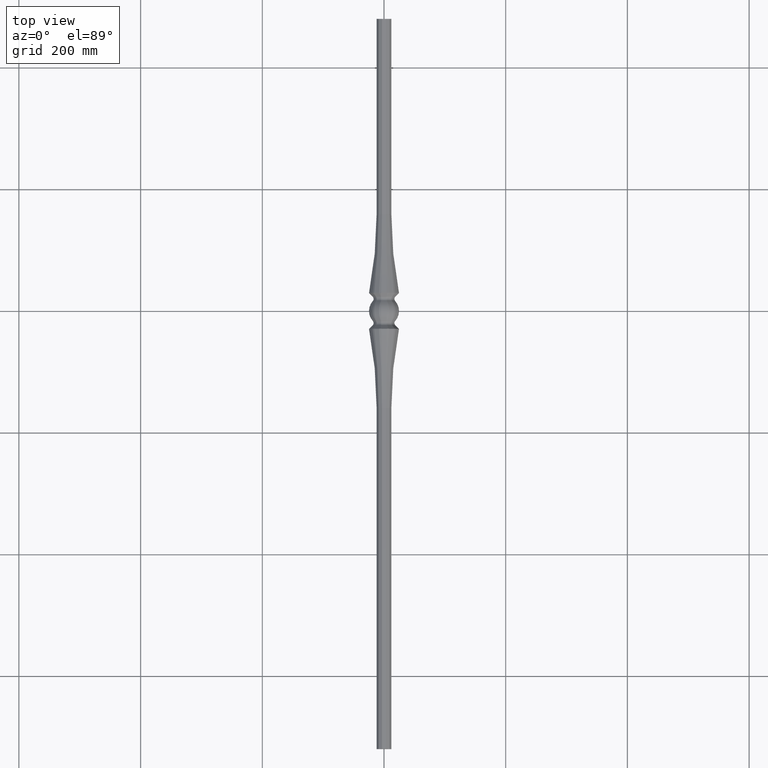
[diagram: clean part render]
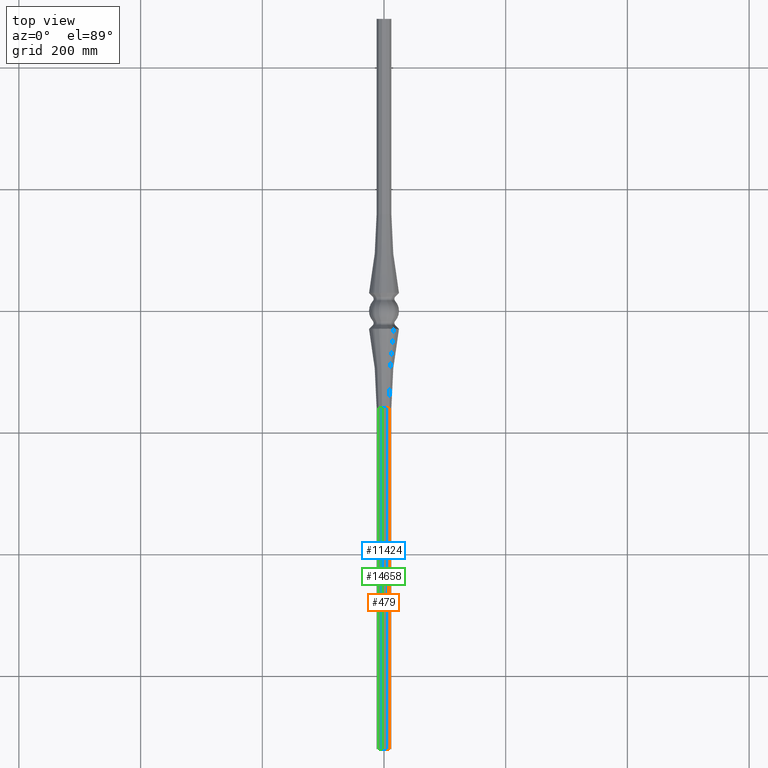
[diagram: same view with three faces highlighted in distinct colors, each labeled with its STEP entity id]
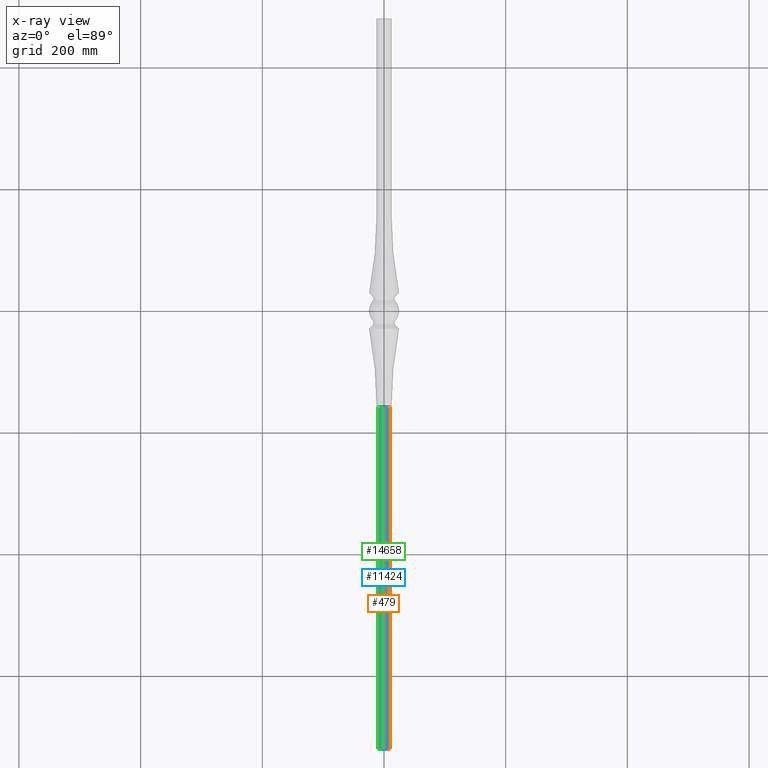
[diagram: x-ray of the same camera — body ghosted, the three highlighted faces saturated]
A machine part, top view with three faces highlighted in distinct colors.
The next image is the same camera in x-ray (body ghosted, the three faces saturated) — at least one of them is partly hidden behind the body in this view.
Their STEP definitions:

[orange] entity #479 — the highlighted planar face has unit normal (0.5, 0, 0.866).
#424 = CARTESIAN_POINT ( 'NONE',  ( 3.333384458558970476, -159.4142026448495244, 12.04734609992756056 ) ) ;
#479 = ADVANCED_FACE ( 'NONE', ( #4096 ), #5533, .T. ) ;
#494 = LINE ( 'NONE', #17804, #976 ) ;
#976 = VECTOR ( 'NONE', #7041, 1000.000000000000114 ) ;
#1585 = CARTESIAN_POINT ( 'NONE',  ( 8.766615541441202808, -159.4142026448495244, 8.910468671656079920 ) ) ;
#2614 = DIRECTION ( 'NONE',  ( 0.8660254037844397068, 0.000000000000000000, -0.4999999999999980016 ) ) ;
#3086 = VECTOR ( 'NONE', #12177, 1000.000000000000000 ) ;
#4096 = FACE_OUTER_BOUND ( 'NONE', #15135, .T. ) ;
#5009 = DIRECTION ( 'NONE',  ( 0.8660254037844397068, 0.000000000000000000, -0.4999999999999980016 ) ) ;
#5038 = VERTEX_POINT ( 'NONE', #11821 ) ;
#5046 = VERTEX_POINT ( 'NONE', #1585 ) ;
#5533 = PLANE ( 'NONE',  #14913 ) ;
#5754 = LINE ( 'NONE', #18298, #3086 ) ;
#6240 = CARTESIAN_POINT ( 'NONE',  ( 3.333384458559804475, -720.0000000000000000, 12.04734609992725858 ) ) ;
#6292 = VECTOR ( 'NONE', #5009, 1000.000000000000114 ) ;
#6823 = ORIENTED_EDGE ( 'NONE', *, *, #16587, .F. ) ;
#7041 = DIRECTION ( 'NONE',  ( -0.8660254037844397068, 0.000000000000000000, 0.4999999999999979461 ) ) ;
#7088 = DIRECTION ( 'NONE',  ( 0.4999999999999980571, 2.401739750415943576E-16, 0.8660254037844398178 ) ) ;
#7830 = ORIENTED_EDGE ( 'NONE', *, *, #10773, .T. ) ;
#7873 = CARTESIAN_POINT ( 'NONE',  ( 8.766615541440438975, -720.0000000000000000, 8.910468671656699868 ) ) ;
#10773 = EDGE_CURVE ( 'NONE', #18117, #5038, #17191, .T. ) ;
#11130 = ORIENTED_EDGE ( 'NONE', *, *, #16569, .F. ) ;
#11646 = ORIENTED_EDGE ( 'NONE', *, *, #14359, .T. ) ;
#11821 = CARTESIAN_POINT ( 'NONE',  ( 8.766615541440442527, -720.0000000000000000, 8.910468671656696316 ) ) ;
#12177 = DIRECTION ( 'NONE',  ( 0.000000000000000000, 1.000000000000000000, 0.000000000000000000 ) ) ;
#14359 = EDGE_CURVE ( 'NONE', #5046, #15346, #494, .T. ) ;
#14913 = AXIS2_PLACEMENT_3D ( 'NONE', #18063, #7088, #2614 ) ;
#15135 = EDGE_LOOP ( 'NONE', ( #7830, #6823, #11646, #11130 ) ) ;
#15219 = LINE ( 'NONE', #7873, #19137 ) ;
#15316 = DIRECTION ( 'NONE',  ( -0.000000000000000000, -1.000000000000000000, -0.000000000000000000 ) ) ;
#15346 = VERTEX_POINT ( 'NONE', #424 ) ;
#16569 = EDGE_CURVE ( 'NONE', #18117, #15346, #5754, .T. ) ;
#16587 = EDGE_CURVE ( 'NONE', #5046, #5038, #15219, .T. ) ;
#17191 = LINE ( 'NONE', #18842, #6292 ) ;
#17804 = CARTESIAN_POINT ( 'NONE',  ( 1.719872981077751994, -159.4142026448495244, 12.97890738579188685 ) ) ;
#18063 = CARTESIAN_POINT ( 'NONE',  ( 1.719872981077768426, -159.4142026448495244, 12.97890738579190106 ) ) ;
#18117 = VERTEX_POINT ( 'NONE', #6240 ) ;
#18298 = CARTESIAN_POINT ( 'NONE',  ( 3.333384458559808916, -720.0000000000000000, 12.04734609992725858 ) ) ;
#18842 = CARTESIAN_POINT ( 'NONE',  ( 1.719872981077835705, -720.0000000000000000, 12.97890738579201830 ) ) ;
#19137 = VECTOR ( 'NONE', #15316, 1000.000000000000000 ) ;

[blue] entity #11424 — the highlighted planar face has unit normal (-0, 0, 1).
#35 = DIRECTION ( 'NONE',  ( -3.491481338843133750E-15, 2.389799105174693410E-16, 1.000000000000000000 ) ) ;
#346 = CARTESIAN_POINT ( 'NONE',  ( 3.136877428271990453, -159.4142026448495244, 12.09999999999986109 ) ) ;
#455 = CARTESIAN_POINT ( 'NONE',  ( 3.136877428271509061, -720.0000000000000000, 12.10000000000005116 ) ) ;
#891 = CARTESIAN_POINT ( 'NONE',  ( 3.136877428271509061, -720.0000000000000000, 12.10000000000005116 ) ) ;
#1517 = CARTESIAN_POINT ( 'NONE',  ( -3.136877428271593438, -720.0000000000000000, 12.10000000000003162 ) ) ;
#2982 = CARTESIAN_POINT ( 'NONE',  ( -5.000000000000042633, -159.4142026448495244, 12.09999999999988951 ) ) ;
#3043 = DIRECTION ( 'NONE',  ( 1.000000000000000000, 0.000000000000000000, 3.491481338843133750E-15 ) ) ;
#3585 = VERTEX_POINT ( 'NONE', #455 ) ;
#3927 = CARTESIAN_POINT ( 'NONE',  ( -3.136877428271593438, -720.0000000000000000, 12.10000000000003162 ) ) ;
#4142 = VERTEX_POINT ( 'NONE', #8282 ) ;
#4822 = LINE ( 'NONE', #891, #8496 ) ;
#7605 = CARTESIAN_POINT ( 'NONE',  ( -5.000000000000042633, -720.0000000000000000, 12.10000000000002451 ) ) ;
#7680 = DIRECTION ( 'NONE',  ( 1.000000000000000000, 0.000000000000000000, 3.491481338843133750E-15 ) ) ;
#7783 = ORIENTED_EDGE ( 'NONE', *, *, #18069, .T. ) ;
#8282 = CARTESIAN_POINT ( 'NONE',  ( -3.136877428271720003, -159.4142026448495244, 12.09999999999983977 ) ) ;
#8496 = VECTOR ( 'NONE', #19428, 1000.000000000000000 ) ;
#9467 = LINE ( 'NONE', #14866, #15999 ) ;
#9543 = VERTEX_POINT ( 'NONE', #3927 ) ;
#10116 = AXIS2_PLACEMENT_3D ( 'NONE', #2982, #35, #7680 ) ;
#10931 = DIRECTION ( 'NONE',  ( 0.000000000000000000, 1.000000000000000000, 0.000000000000000000 ) ) ;
#11424 = ADVANCED_FACE ( 'NONE', ( #15993 ), #17000, .T. ) ;
#11606 = VECTOR ( 'NONE', #3043, 1000.000000000000000 ) ;
#13126 = EDGE_CURVE ( 'NONE', #9543, #4142, #16274, .T. ) ;
#14866 = CARTESIAN_POINT ( 'NONE',  ( -5.000000000000042633, -159.4142026448495244, 12.09999999999983267 ) ) ;
#14910 = EDGE_CURVE ( 'NONE', #17844, #4142, #9467, .T. ) ;
#15204 = ORIENTED_EDGE ( 'NONE', *, *, #13126, .F. ) ;
#15412 = EDGE_CURVE ( 'NONE', #17844, #3585, #4822, .T. ) ;
#15993 = FACE_OUTER_BOUND ( 'NONE', #16835, .T. ) ;
#15999 = VECTOR ( 'NONE', #16482, 1000.000000000000000 ) ;
#16274 = LINE ( 'NONE', #1517, #17238 ) ;
#16482 = DIRECTION ( 'NONE',  ( -1.000000000000000000, 0.000000000000000000, -3.491481338843133355E-15 ) ) ;
#16795 = ORIENTED_EDGE ( 'NONE', *, *, #15412, .F. ) ;
#16835 = EDGE_LOOP ( 'NONE', ( #7783, #16795, #18463, #15204 ) ) ;
#17000 = PLANE ( 'NONE',  #10116 ) ;
#17238 = VECTOR ( 'NONE', #10931, 1000.000000000000000 ) ;
#17844 = VERTEX_POINT ( 'NONE', #346 ) ;
#18069 = EDGE_CURVE ( 'NONE', #9543, #3585, #19357, .T. ) ;
#18463 = ORIENTED_EDGE ( 'NONE', *, *, #14910, .T. ) ;
#19357 = LINE ( 'NONE', #7605, #11606 ) ;
#19428 = DIRECTION ( 'NONE',  ( -0.000000000000000000, -1.000000000000000000, -0.000000000000000000 ) ) ;

[green] entity #14658 — the highlighted planar face has unit normal (-0.5, 0, 0.866).
#1062 = LINE ( 'NONE', #7529, #12989 ) ;
#2527 = DIRECTION ( 'NONE',  ( -0.000000000000000000, -1.000000000000000000, -0.000000000000000000 ) ) ;
#2945 = PLANE ( 'NONE',  #12327 ) ;
#4384 = CARTESIAN_POINT ( 'NONE',  ( -8.766615541440845760, -720.0000000000000000, 8.910468671656301964 ) ) ;
#4703 = VERTEX_POINT ( 'NONE', #15318 ) ;
#5456 = DIRECTION ( 'NONE',  ( -0.8660254037844363761, 0.000000000000000000, -0.5000000000000039968 ) ) ;
#6299 = VERTEX_POINT ( 'NONE', #7813 ) ;
#6592 = EDGE_CURVE ( 'NONE', #14427, #6299, #1062, .T. ) ;
#7529 = CARTESIAN_POINT ( 'NONE',  ( -8.766615541440863524, -720.0000000000000000, 8.910468671656284201 ) ) ;
#7813 = CARTESIAN_POINT ( 'NONE',  ( -8.766615541441137083, -159.4142026448497234, 8.910468671655660700 ) ) ;
#8114 = ORIENTED_EDGE ( 'NONE', *, *, #14850, .T. ) ;
#8883 = VERTEX_POINT ( 'NONE', #18810 ) ;
#8902 = VECTOR ( 'NONE', #2527, 1000.000000000000000 ) ;
#9084 = EDGE_LOOP ( 'NONE', ( #12920, #16199, #8114, #12830 ) ) ;
#11450 = CARTESIAN_POINT ( 'NONE',  ( -10.38012701892216150, -159.4142026448497234, 7.978907385791430329 ) ) ;
#11725 = VECTOR ( 'NONE', #19362, 999.9999999999998863 ) ;
#12327 = AXIS2_PLACEMENT_3D ( 'NONE', #13836, #15359, #13968 ) ;
#12424 = LINE ( 'NONE', #17894, #11725 ) ;
#12830 = ORIENTED_EDGE ( 'NONE', *, *, #6592, .F. ) ;
#12920 = ORIENTED_EDGE ( 'NONE', *, *, #12962, .T. ) ;
#12962 = EDGE_CURVE ( 'NONE', #14427, #4703, #12424, .T. ) ;
#12989 = VECTOR ( 'NONE', #13719, 1000.000000000000000 ) ;
#13044 = LINE ( 'NONE', #16421, #8902 ) ;
#13719 = DIRECTION ( 'NONE',  ( 0.000000000000000000, 1.000000000000000000, 0.000000000000000000 ) ) ;
#13836 = CARTESIAN_POINT ( 'NONE',  ( -10.38012701892229650, -159.4142026448499507, 7.978907385791664808 ) ) ;
#13842 = LINE ( 'NONE', #11450, #18173 ) ;
#13968 = DIRECTION ( 'NONE',  ( 0.8660254037844363761, 0.000000000000000000, 0.5000000000000039968 ) ) ;
#14076 = FACE_OUTER_BOUND ( 'NONE', #9084, .T. ) ;
#14427 = VERTEX_POINT ( 'NONE', #4384 ) ;
#14658 = ADVANCED_FACE ( 'NONE', ( #14076 ), #2945, .T. ) ;
#14850 = EDGE_CURVE ( 'NONE', #8883, #6299, #13842, .T. ) ;
#15318 = CARTESIAN_POINT ( 'NONE',  ( -3.333384458559427443, -720.0000000000000000, 12.04734609992736516 ) ) ;
#15359 = DIRECTION ( 'NONE',  ( -0.5000000000000039968, 2.401739750415943083E-16, 0.8660254037844363761 ) ) ;
#16199 = ORIENTED_EDGE ( 'NONE', *, *, #18997, .F. ) ;
#16421 = CARTESIAN_POINT ( 'NONE',  ( -3.333384458559406571, -720.0000000000000000, 12.04734609992736871 ) ) ;
#17894 = CARTESIAN_POINT ( 'NONE',  ( -10.38012701892236400, -720.0000000000000000, 7.978907385791781159 ) ) ;
#18173 = VECTOR ( 'NONE', #5456, 999.9999999999998863 ) ;
#18810 = CARTESIAN_POINT ( 'NONE',  ( -3.333384458557865138, -159.4142026448497234, 12.04734609992779326 ) ) ;
#18997 = EDGE_CURVE ( 'NONE', #8883, #4703, #13044, .T. ) ;
#19362 = DIRECTION ( 'NONE',  ( 0.8660254037844363761, 0.000000000000000000, 0.5000000000000039968 ) ) ;